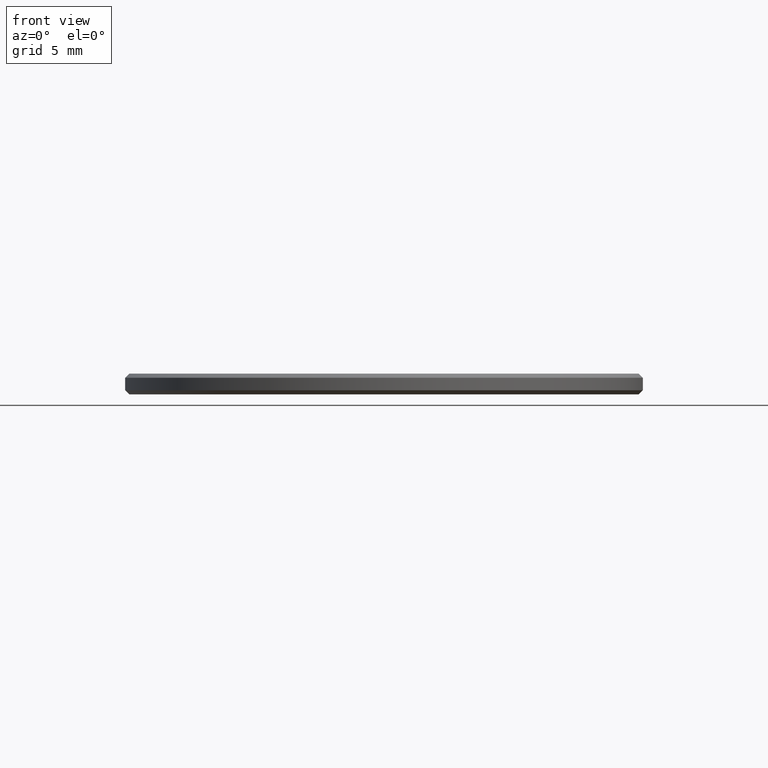
[diagram: clean part render]
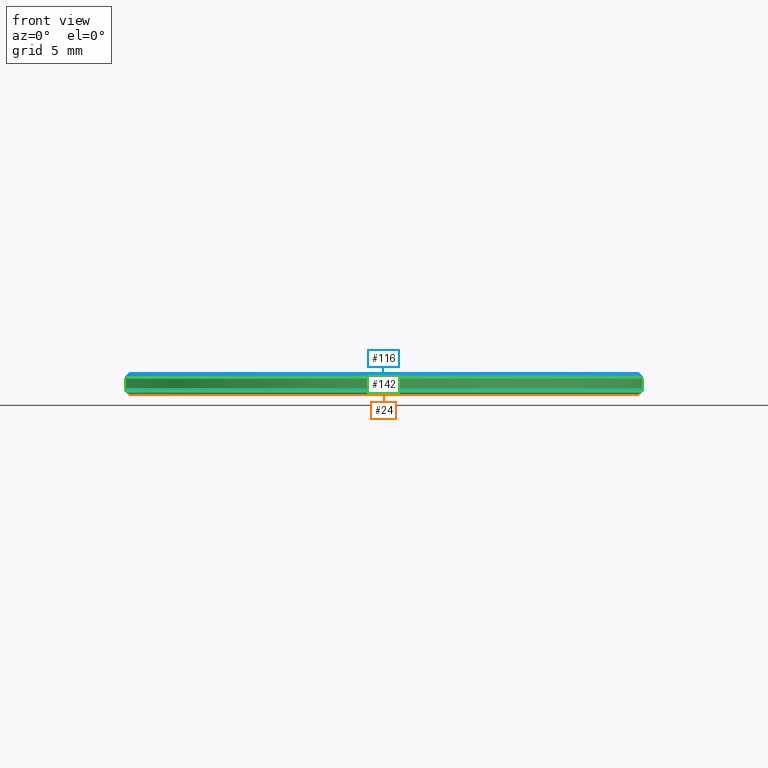
[diagram: same view with three faces highlighted in distinct colors, each labeled with its STEP entity id]
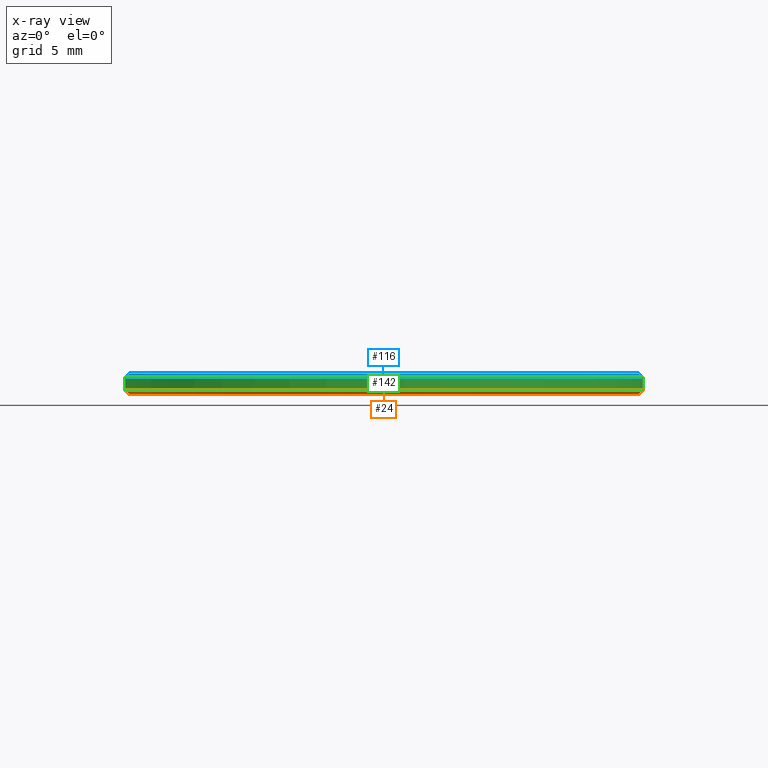
[diagram: x-ray of the same camera — body ghosted, the three highlighted faces saturated]
A machine part, front view with three faces highlighted in distinct colors.
The next image is the same camera in x-ray (body ghosted, the three faces saturated) — at least one of them is partly hidden behind the body in this view.
Their STEP definitions:

[orange] entity #24 — the highlighted conical surface has half-angle 45 deg.
#1 = DIRECTION ( 'NONE',  ( 0.7071067811865474617, 0.000000000000000000, 0.7071067811865474617 ) ) ;
#15 = EDGE_CURVE ( 'NONE', #190, #151, #20, .T. ) ;
#20 = CIRCLE ( 'NONE', #110, 12.30000000000000249 ) ;
#23 = DIRECTION ( 'NONE',  ( -0.7071067811865474617, 8.659560562354932858E-17, 0.7071067811865474617 ) ) ;
#24 = ADVANCED_FACE ( 'NONE', ( #195 ), #42, .T. ) ;
#32 = DIRECTION ( 'NONE',  ( 1.000000000000000000, 0.000000000000000000, 0.000000000000000000 ) ) ;
#33 = CIRCLE ( 'NONE', #165, 12.50000000000000000 ) ;
#35 = EDGE_CURVE ( 'NONE', #82, #160, #33, .T. ) ;
#41 = CARTESIAN_POINT ( 'NONE',  ( 12.30000000000000249, 0.000000000000000000, 0.000000000000000000 ) ) ;
#42 = CONICAL_SURFACE ( 'NONE', #134, 12.50000000000000000, 0.7853981633974482790 ) ;
#49 = ORIENTED_EDGE ( 'NONE', *, *, #35, .F. ) ;
#51 = DIRECTION ( 'NONE',  ( 1.000000000000000000, 0.000000000000000000, 0.000000000000000000 ) ) ;
#52 = CARTESIAN_POINT ( 'NONE',  ( 0.000000000000000000, 0.000000000000000000, 0.1999999999999987899 ) ) ;
#53 = CARTESIAN_POINT ( 'NONE',  ( -12.50000000000000000, 0.000000000000000000, 0.1999999999999987899 ) ) ;
#56 = VECTOR ( 'NONE', #1, 1000.000000000000114 ) ;
#58 = LINE ( 'NONE', #191, #56 ) ;
#68 = DIRECTION ( 'NONE',  ( -0.000000000000000000, -0.000000000000000000, -1.000000000000000000 ) ) ;
#82 = VERTEX_POINT ( 'NONE', #53 ) ;
#101 = DIRECTION ( 'NONE',  ( -0.000000000000000000, -0.000000000000000000, 1.000000000000000000 ) ) ;
#107 = CARTESIAN_POINT ( 'NONE',  ( -12.30000000000000249, 1.518562030942718164E-15, 0.000000000000000000 ) ) ;
#110 = AXIS2_PLACEMENT_3D ( 'NONE', #233, #68, #138 ) ;
#121 = ORIENTED_EDGE ( 'NONE', *, *, #227, .F. ) ;
#123 = ORIENTED_EDGE ( 'NONE', *, *, #15, .F. ) ;
#125 = EDGE_CURVE ( 'NONE', #190, #160, #58, .T. ) ;
#134 = AXIS2_PLACEMENT_3D ( 'NONE', #52, #101, #32 ) ;
#138 = DIRECTION ( 'NONE',  ( 1.000000000000000000, 0.000000000000000000, 0.000000000000000000 ) ) ;
#140 = ORIENTED_EDGE ( 'NONE', *, *, #125, .T. ) ;
#151 = VERTEX_POINT ( 'NONE', #107 ) ;
#157 = DIRECTION ( 'NONE',  ( -0.000000000000000000, -0.000000000000000000, 1.000000000000000000 ) ) ;
#160 = VERTEX_POINT ( 'NONE', #164 ) ;
#164 = CARTESIAN_POINT ( 'NONE',  ( 12.50000000000000000, 1.530808498934191521E-15, 0.1999999999999987899 ) ) ;
#165 = AXIS2_PLACEMENT_3D ( 'NONE', #179, #157, #51 ) ;
#174 = EDGE_LOOP ( 'NONE', ( #121, #123, #140, #49 ) ) ;
#179 = CARTESIAN_POINT ( 'NONE',  ( 0.000000000000000000, 0.000000000000000000, 0.1999999999999987899 ) ) ;
#190 = VERTEX_POINT ( 'NONE', #41 ) ;
#191 = CARTESIAN_POINT ( 'NONE',  ( 12.50000000000000000, 0.000000000000000000, 0.1999999999999987899 ) ) ;
#195 = FACE_OUTER_BOUND ( 'NONE', #174, .T. ) ;
#222 = LINE ( 'NONE', #228, #239 ) ;
#227 = EDGE_CURVE ( 'NONE', #151, #82, #222, .T. ) ;
#228 = CARTESIAN_POINT ( 'NONE',  ( -12.50000000000000000, 1.530808498934191521E-15, 0.1999999999999987899 ) ) ;
#233 = CARTESIAN_POINT ( 'NONE',  ( 0.000000000000000000, 0.000000000000000000, 0.000000000000000000 ) ) ;
#239 = VECTOR ( 'NONE', #23, 1000.000000000000114 ) ;

[blue] entity #116 — the highlighted conical surface has half-angle 45 deg.
#3 = ORIENTED_EDGE ( 'NONE', *, *, #62, .T. ) ;
#4 = AXIS2_PLACEMENT_3D ( 'NONE', #240, #166, #76 ) ;
#7 = LINE ( 'NONE', #118, #162 ) ;
#28 = VERTEX_POINT ( 'NONE', #84 ) ;
#31 = VERTEX_POINT ( 'NONE', #237 ) ;
#40 = CARTESIAN_POINT ( 'NONE',  ( -12.29999999999999893, 0.000000000000000000, 1.000000000000000000 ) ) ;
#45 = DIRECTION ( 'NONE',  ( 0.7071067811865566766, 8.659560562355045024E-17, -0.7071067811865383579 ) ) ;
#50 = DIRECTION ( 'NONE',  ( 0.000000000000000000, 0.000000000000000000, -1.000000000000000000 ) ) ;
#54 = CARTESIAN_POINT ( 'NONE',  ( 0.000000000000000000, 0.000000000000000000, 0.8000000000000029310 ) ) ;
#62 = EDGE_CURVE ( 'NONE', #177, #31, #73, .T. ) ;
#73 = LINE ( 'NONE', #235, #188 ) ;
#76 = DIRECTION ( 'NONE',  ( 1.000000000000000000, 0.000000000000000000, 0.000000000000000000 ) ) ;
#84 = CARTESIAN_POINT ( 'NONE',  ( 12.50000000000000000, 1.530808498934191521E-15, 0.8000000000000029310 ) ) ;
#93 = DIRECTION ( 'NONE',  ( 0.000000000000000000, 0.000000000000000000, -1.000000000000000000 ) ) ;
#98 = EDGE_CURVE ( 'NONE', #28, #31, #178, .T. ) ;
#100 = FACE_OUTER_BOUND ( 'NONE', #181, .T. ) ;
#102 = ORIENTED_EDGE ( 'NONE', *, *, #98, .F. ) ;
#105 = CIRCLE ( 'NONE', #4, 12.29999999999999893 ) ;
#116 = ADVANCED_FACE ( 'NONE', ( #100 ), #211, .T. ) ;
#118 = CARTESIAN_POINT ( 'NONE',  ( 12.29999999999999893, 1.506315562951244216E-15, 1.000000000000000000 ) ) ;
#119 = DIRECTION ( 'NONE',  ( 1.000000000000000000, 0.000000000000000000, 0.000000000000000000 ) ) ;
#120 = CARTESIAN_POINT ( 'NONE',  ( 0.000000000000000000, 0.000000000000000000, 1.000000000000000000 ) ) ;
#129 = CARTESIAN_POINT ( 'NONE',  ( 12.29999999999999893, 1.518562030942717967E-15, 1.000000000000000000 ) ) ;
#137 = VERTEX_POINT ( 'NONE', #129 ) ;
#155 = ORIENTED_EDGE ( 'NONE', *, *, #229, .F. ) ;
#162 = VECTOR ( 'NONE', #45, 1000.000000000000000 ) ;
#166 = DIRECTION ( 'NONE',  ( 0.000000000000000000, 0.000000000000000000, 1.000000000000000000 ) ) ;
#176 = AXIS2_PLACEMENT_3D ( 'NONE', #120, #93, #223 ) ;
#177 = VERTEX_POINT ( 'NONE', #40 ) ;
#178 = CIRCLE ( 'NONE', #213, 12.50000000000000000 ) ;
#181 = EDGE_LOOP ( 'NONE', ( #155, #197, #3, #102 ) ) ;
#188 = VECTOR ( 'NONE', #234, 1000.000000000000000 ) ;
#197 = ORIENTED_EDGE ( 'NONE', *, *, #214, .F. ) ;
#211 = CONICAL_SURFACE ( 'NONE', #176, 12.29999999999999893, 0.7853981633974612686 ) ;
#213 = AXIS2_PLACEMENT_3D ( 'NONE', #54, #50, #119 ) ;
#214 = EDGE_CURVE ( 'NONE', #177, #137, #105, .T. ) ;
#223 = DIRECTION ( 'NONE',  ( -1.000000000000000000, 0.000000000000000000, 0.000000000000000000 ) ) ;
#229 = EDGE_CURVE ( 'NONE', #137, #28, #7, .T. ) ;
#234 = DIRECTION ( 'NONE',  ( -0.7071067811865566766, 0.000000000000000000, -0.7071067811865383579 ) ) ;
#235 = CARTESIAN_POINT ( 'NONE',  ( -12.29999999999999893, 0.000000000000000000, 1.000000000000000000 ) ) ;
#237 = CARTESIAN_POINT ( 'NONE',  ( -12.50000000000000000, 0.000000000000000000, 0.8000000000000029310 ) ) ;
#240 = CARTESIAN_POINT ( 'NONE',  ( 0.000000000000000000, 0.000000000000000000, 1.000000000000000000 ) ) ;

[green] entity #142 — the highlighted cylindrical surface (partial cylindrical patch) has radius 12.5 mm, axis along (-0, -0, -1).
#5 = DIRECTION ( 'NONE',  ( -0.000000000000000000, -0.000000000000000000, -1.000000000000000000 ) ) ;
#11 = VECTOR ( 'NONE', #91, 1000.000000000000000 ) ;
#12 = ORIENTED_EDGE ( 'NONE', *, *, #168, .T. ) ;
#28 = VERTEX_POINT ( 'NONE', #84 ) ;
#31 = VERTEX_POINT ( 'NONE', #237 ) ;
#33 = CIRCLE ( 'NONE', #165, 12.50000000000000000 ) ;
#34 = EDGE_LOOP ( 'NONE', ( #167, #67, #12, #231 ) ) ;
#35 = EDGE_CURVE ( 'NONE', #82, #160, #33, .T. ) ;
#50 = DIRECTION ( 'NONE',  ( 0.000000000000000000, 0.000000000000000000, -1.000000000000000000 ) ) ;
#51 = DIRECTION ( 'NONE',  ( 1.000000000000000000, 0.000000000000000000, 0.000000000000000000 ) ) ;
#53 = CARTESIAN_POINT ( 'NONE',  ( -12.50000000000000000, 0.000000000000000000, 0.1999999999999987899 ) ) ;
#54 = CARTESIAN_POINT ( 'NONE',  ( 0.000000000000000000, 0.000000000000000000, 0.8000000000000029310 ) ) ;
#57 = CARTESIAN_POINT ( 'NONE',  ( 0.000000000000000000, 0.000000000000000000, 1.000000000000000000 ) ) ;
#67 = ORIENTED_EDGE ( 'NONE', *, *, #98, .T. ) ;
#74 = LINE ( 'NONE', #208, #11 ) ;
#75 = VECTOR ( 'NONE', #149, 1000.000000000000000 ) ;
#77 = DIRECTION ( 'NONE',  ( -1.000000000000000000, 0.000000000000000000, 0.000000000000000000 ) ) ;
#82 = VERTEX_POINT ( 'NONE', #53 ) ;
#84 = CARTESIAN_POINT ( 'NONE',  ( 12.50000000000000000, 1.530808498934191521E-15, 0.8000000000000029310 ) ) ;
#91 = DIRECTION ( 'NONE',  ( -0.000000000000000000, -0.000000000000000000, -1.000000000000000000 ) ) ;
#98 = EDGE_CURVE ( 'NONE', #28, #31, #178, .T. ) ;
#108 = FACE_OUTER_BOUND ( 'NONE', #34, .T. ) ;
#119 = DIRECTION ( 'NONE',  ( 1.000000000000000000, 0.000000000000000000, 0.000000000000000000 ) ) ;
#127 = LINE ( 'NONE', #186, #75 ) ;
#142 = ADVANCED_FACE ( 'NONE', ( #108 ), #207, .T. ) ;
#149 = DIRECTION ( 'NONE',  ( -0.000000000000000000, -0.000000000000000000, -1.000000000000000000 ) ) ;
#157 = DIRECTION ( 'NONE',  ( -0.000000000000000000, -0.000000000000000000, 1.000000000000000000 ) ) ;
#160 = VERTEX_POINT ( 'NONE', #164 ) ;
#164 = CARTESIAN_POINT ( 'NONE',  ( 12.50000000000000000, 1.530808498934191521E-15, 0.1999999999999987899 ) ) ;
#165 = AXIS2_PLACEMENT_3D ( 'NONE', #179, #157, #51 ) ;
#167 = ORIENTED_EDGE ( 'NONE', *, *, #185, .F. ) ;
#168 = EDGE_CURVE ( 'NONE', #31, #82, #127, .T. ) ;
#178 = CIRCLE ( 'NONE', #213, 12.50000000000000000 ) ;
#179 = CARTESIAN_POINT ( 'NONE',  ( 0.000000000000000000, 0.000000000000000000, 0.1999999999999987899 ) ) ;
#185 = EDGE_CURVE ( 'NONE', #28, #160, #74, .T. ) ;
#186 = CARTESIAN_POINT ( 'NONE',  ( -12.50000000000000000, 0.000000000000000000, 1.000000000000000000 ) ) ;
#192 = AXIS2_PLACEMENT_3D ( 'NONE', #57, #5, #77 ) ;
#207 = CYLINDRICAL_SURFACE ( 'NONE', #192, 12.50000000000000000 ) ;
#208 = CARTESIAN_POINT ( 'NONE',  ( 12.50000000000000000, 1.530808498934191521E-15, 1.000000000000000000 ) ) ;
#213 = AXIS2_PLACEMENT_3D ( 'NONE', #54, #50, #119 ) ;
#231 = ORIENTED_EDGE ( 'NONE', *, *, #35, .T. ) ;
#237 = CARTESIAN_POINT ( 'NONE',  ( -12.50000000000000000, 0.000000000000000000, 0.8000000000000029310 ) ) ;